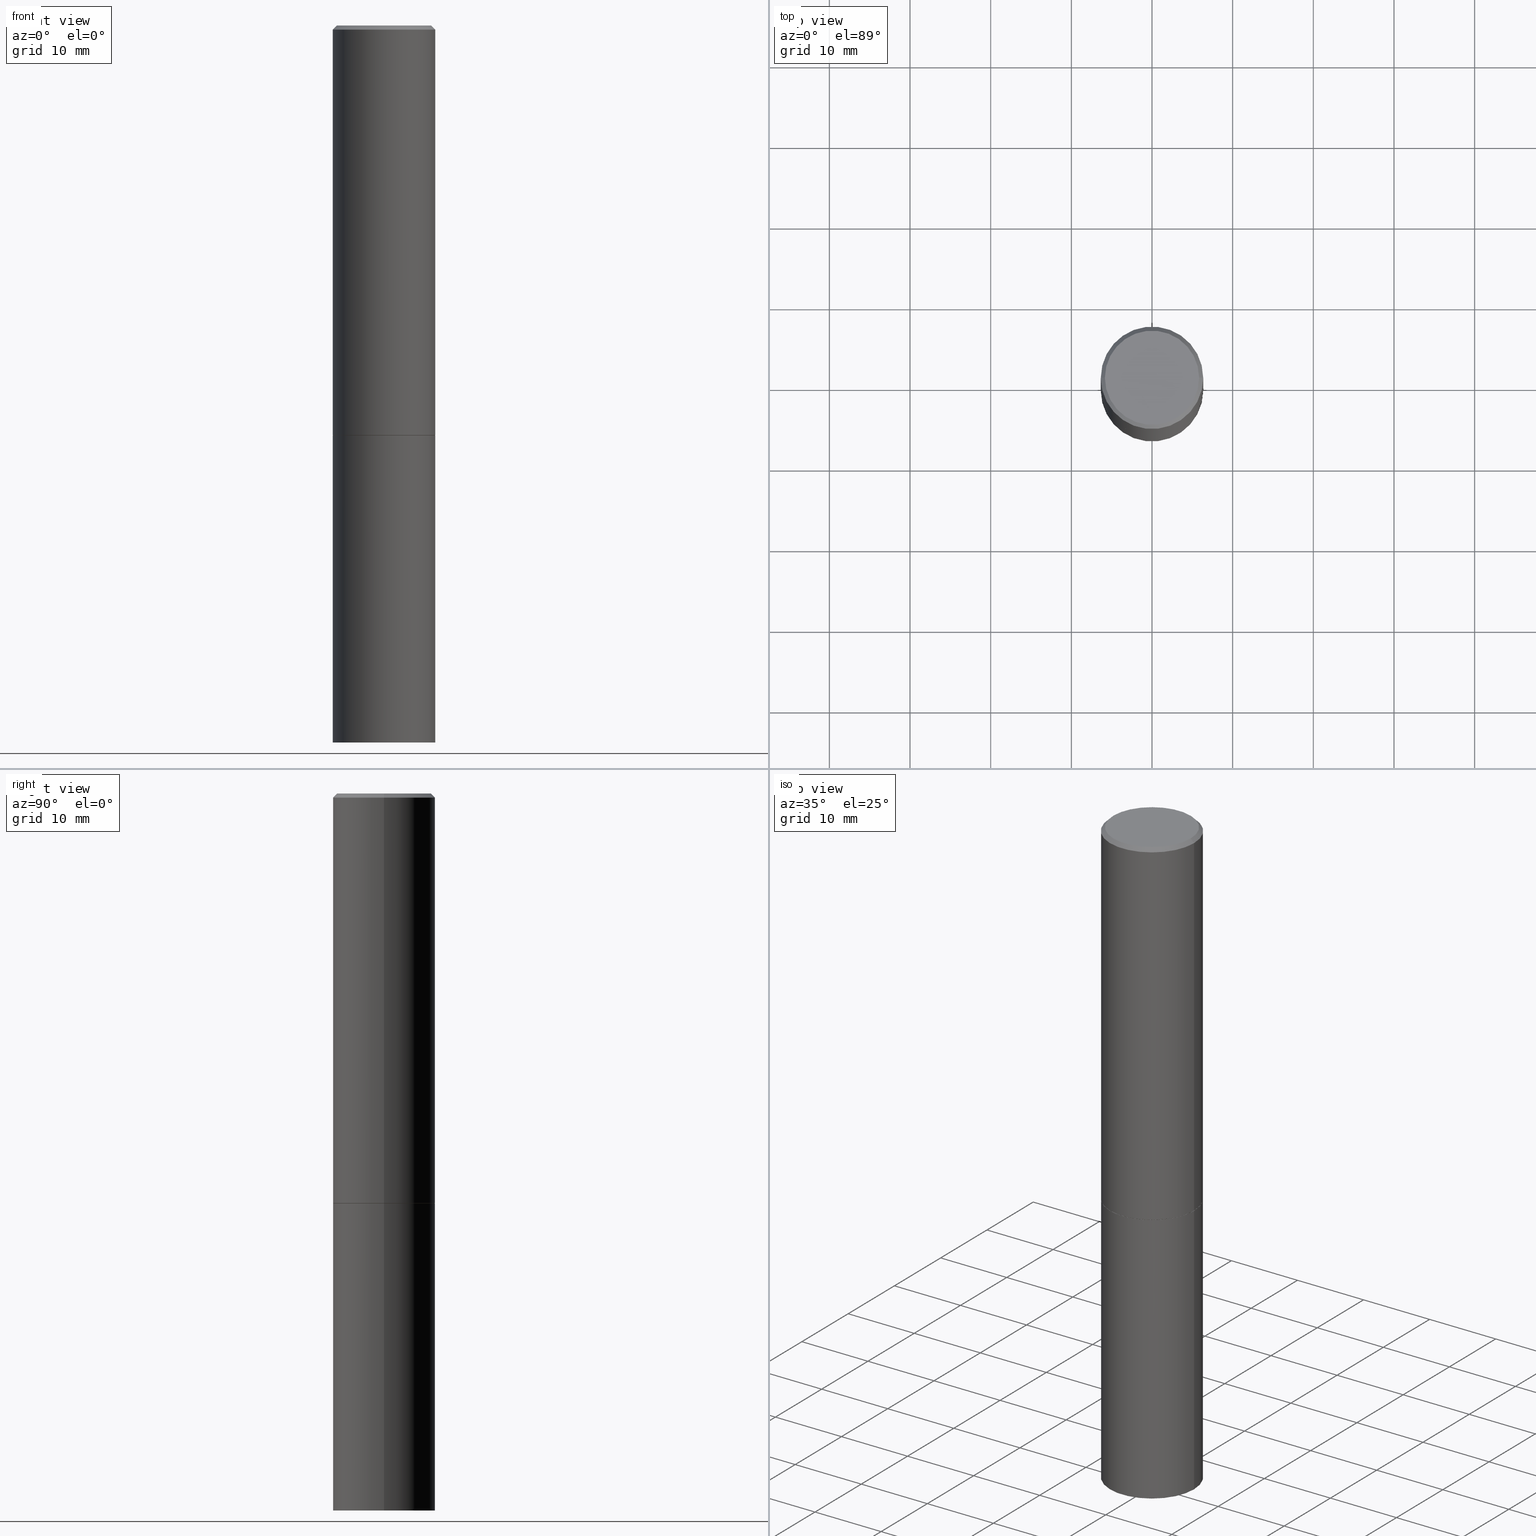
[diagram: canonical four-view strip — front | top / right | iso, engineering-drawing reading convention]
A machine part, canonical four-view strip (front | top / right | iso — engineering-drawing reading convention). The complete STEP part file that produces these views, byte-faithful:
ISO-10303-21;
HEADER;
FILE_DESCRIPTION (( 'STEP AP203' ),
    '1' );
FILE_NAME ('72977.STEP',
    '2024-02-29T06:14:32',
    ( '' ),
    ( '' ),
    'SwSTEP 2.0',
    'SolidWorks 2023',
    '' );
FILE_SCHEMA (( 'CONFIG_CONTROL_DESIGN' ));
ENDSEC;

DATA;
#1 = CONICAL_SURFACE ( 'NONE', #29, 0.2489999999999999991, 0.7853981633975507526 ) ;
#2 = VERTEX_POINT ( 'NONE', #228 ) ;
#3 = LINE ( 'NONE', #238, #68 ) ;
#4 = DIRECTION ( 'NONE',  ( -2.445468806185136597E-29, 3.491481338843145583E-15, 1.000000000000000000 ) ) ;
#5 = AXIS2_PLACEMENT_3D ( 'NONE', #92, #4, #265 ) ;
#6 = COORDINATED_UNIVERSAL_TIME_OFFSET ( 5, 0, .BEHIND. ) ;
#7 = LINE ( 'NONE', #316, #183 ) ;
#8 = CARTESIAN_POINT ( 'NONE',  ( 4.890937612370280165E-31, -6.982962677686301470E-17, -0.02000000000000003164 ) ) ;
#9 = EDGE_LOOP ( 'NONE', ( #176, #251 ) ) ;
#10 = DIRECTION ( 'NONE',  ( -2.438088387897960049E-29, 3.491481338843145188E-15, 1.000000000000000000 ) ) ;
#11 = EDGE_CURVE ( 'NONE', #2, #283, #248, .T. ) ;
#12 = ORIENTED_EDGE ( 'NONE', *, *, #133, .T. ) ;
#13 = APPLICATION_CONTEXT ( 'configuration controlled 3d designs of mechanical parts and assemblies' ) ;
#14 = DIRECTION ( 'NONE',  ( 1.000000000000000000, -6.982962677686266711E-15, 0.000000000000000000 ) ) ;
#15 = APPROVAL_PERSON_ORGANIZATION ( #201, #309, #288 ) ;
#16 = FACE_OUTER_BOUND ( 'NONE', #252, .T. ) ;
#17 = ORIENTED_EDGE ( 'NONE', *, *, #71, .F. ) ;
#18 = VERTEX_POINT ( 'NONE', #186 ) ;
#19 = CARTESIAN_POINT ( 'NONE',  ( 4.890937612370272073E-29, -6.982962677686288799E-15, -1.999999999999999334 ) ) ;
#20 = PRODUCT_DEFINITION_SHAPE ( 'NONE', 'NONE',  #76 ) ;
#21 = ORIENTED_EDGE ( 'NONE', *, *, #202, .F. ) ;
#22 = AXIS2_PLACEMENT_3D ( 'NONE', #8, #313, #93 ) ;
#23 = ADVANCED_FACE ( 'NONE', ( #131 ), #36, .F. ) ;
#24 = DIRECTION ( 'NONE',  ( 1.000000000000000000, -6.982962677686266711E-15, 0.000000000000000000 ) ) ;
#25 = DIRECTION ( 'NONE',  ( -1.000000000000000000, 6.982962677686265922E-15, -4.876176775795935793E-29 ) ) ;
#26 = ORIENTED_EDGE ( 'NONE', *, *, #179, .F. ) ;
#27 = CARTESIAN_POINT ( 'NONE',  ( 4.888492143564087030E-29, -6.979471196347446580E-15, -1.998999999999999666 ) ) ;
#28 = EDGE_LOOP ( 'NONE', ( #300, #117, #273, #296 ) ) ;
#29 = AXIS2_PLACEMENT_3D ( 'NONE', #246, #275, #323 ) ;
#30 = DATE_TIME_ROLE ( 'creation_date' ) ;
#31 = CARTESIAN_POINT ( 'NONE',  ( 0.000000000000000000, 0.000000000000000000, 0.000000000000000000 ) ) ;
#32 = PERSON_AND_ORGANIZATION ( #360, #118 ) ;
#33 = LINE ( 'NONE', #293, #263 ) ;
#34 = CALENDAR_DATE ( 2024, 29, 2 ) ;
#35 = AXIS2_PLACEMENT_3D ( 'NONE', #163, #279, #25 ) ;
#36 = PLANE ( 'NONE',  #112 ) ;
#37 = SECURITY_CLASSIFICATION_LEVEL ( 'unclassified' ) ;
#38 = CARTESIAN_POINT ( 'NONE',  ( 4.890937612370272073E-29, -6.982962677686288799E-15, -1.999999999999999334 ) ) ;
#39 = DIRECTION ( 'NONE',  ( 1.000000000000000000, -6.982962677686266711E-15, 4.876176775795935793E-29 ) ) ;
#40 = CARTESIAN_POINT ( 'NONE',  ( 1.745740669421615390E-15, 0.2499999999999930334, -2.000000000000000444 ) ) ;
#41 = LINE ( 'NONE', #327, #303 ) ;
#42 = VERTEX_POINT ( 'NONE', #235 ) ;
#43 = EDGE_CURVE ( 'NONE', #280, #298, #129, .T. ) ;
#44 = DIRECTION ( 'NONE',  ( -2.445468806185136597E-29, 3.491481338843145583E-15, 1.000000000000000000 ) ) ;
#45 = APPROVAL_DATE_TIME ( #233, #110 ) ;
#46 = CC_DESIGN_PERSON_AND_ORGANIZATION_ASSIGNMENT ( #227, #173, ( #69 ) ) ;
#47 = CIRCLE ( 'NONE', #79, 0.2500000000000000000 ) ;
#48 = ADVANCED_FACE ( 'NONE', ( #347 ), #324, .T. ) ;
#49 = AXIS2_PLACEMENT_3D ( 'NONE', #31, #116, #115 ) ;
#50 = DIRECTION ( 'NONE',  ( 1.000000000000000000, -6.982962677686265922E-15, 4.876176775795935793E-29 ) ) ;
#51 = LOCAL_TIME ( 1, 14, 32.00000000000000000, #286 ) ;
#52 = APPLICATION_PROTOCOL_DEFINITION ( 'international standard', 'config_control_design', 1994, #364 ) ;
#53 = PLANE ( 'NONE',  #35 ) ;
#54 = DATE_AND_TIME ( #34, #157 ) ;
#55 = PERSON_AND_ORGANIZATION_ROLE ( 'classification_officer' ) ;
#56 = CC_DESIGN_PERSON_AND_ORGANIZATION_ASSIGNMENT ( #197, #212, ( #355 ) ) ;
#57 = DIRECTION ( 'NONE',  ( -2.445468806185136597E-29, 3.491481338843145583E-15, 1.000000000000000000 ) ) ;
#58 =( GEOMETRIC_REPRESENTATION_CONTEXT ( 3 ) GLOBAL_UNCERTAINTY_ASSIGNED_CONTEXT ( ( #262 ) ) GLOBAL_UNIT_ASSIGNED_CONTEXT ( ( #126, #331, #65 ) ) REPRESENTATION_CONTEXT ( 'NONE', 'WORKASPACE' ) );
#59 = DIRECTION ( 'NONE',  ( 1.000000000000000000, -6.982962677686266711E-15, 0.000000000000000000 ) ) ;
#60 = APPLICATION_PROTOCOL_DEFINITION ( 'international standard', 'config_control_design', 1994, #13 ) ;
#61 = VERTEX_POINT ( 'NONE', #199 ) ;
#62 = ORIENTED_EDGE ( 'NONE', *, *, #220, .T. ) ;
#63 = DIRECTION ( 'NONE',  ( 1.000000000000000000, -6.982962677686266711E-15, 0.000000000000000000 ) ) ;
#64 = FACE_OUTER_BOUND ( 'NONE', #315, .T. ) ;
#65 =( NAMED_UNIT ( * ) SI_UNIT ( $, .STERADIAN. ) SOLID_ANGLE_UNIT ( ) );
#66 = PERSON_AND_ORGANIZATION_ROLE ( 'creator' ) ;
#67 = ORIENTED_EDGE ( 'NONE', *, *, #108, .F. ) ;
#68 = VECTOR ( 'NONE', #232, 39.37007874015748143 ) ;
#69 = PRODUCT_DEFINITION_FORMATION_WITH_SPECIFIED_SOURCE ( 'ANY', '', #355, .NOT_KNOWN. ) ;
#70 = ADVANCED_FACE ( 'NONE', ( #258 ), #287, .T. ) ;
#71 = EDGE_CURVE ( 'NONE', #137, #283, #3, .T. ) ;
#72 = DIRECTION ( 'NONE',  ( -2.445468806185136597E-29, 3.491481338843145583E-15, 1.000000000000000000 ) ) ;
#73 = DIRECTION ( 'NONE',  ( -2.445468806185136877E-29, 3.491481338843145188E-15, 1.000000000000000000 ) ) ;
#74 = AXIS2_PLACEMENT_3D ( 'NONE', #80, #306, #362 ) ;
#75 = ADVANCED_FACE ( 'NONE', ( #142 ), #267, .T. ) ;
#76 = PRODUCT_DEFINITION ( 'UNKNOWN', '', #69, #167 ) ;
#77 = CARTESIAN_POINT ( 'NONE',  ( 1.606081415867839490E-15, 0.2299999999999997602, -8.009064516888724897E-16 ) ) ;
#78 = ADVANCED_FACE ( 'NONE', ( #64 ), #192, .T. ) ;
#79 = AXIS2_PLACEMENT_3D ( 'NONE', #366, #156, #281 ) ;
#80 = CARTESIAN_POINT ( 'NONE',  ( 0.000000000000000000, 0.000000000000000000, 0.000000000000000000 ) ) ;
#81 = CARTESIAN_POINT ( 'NONE',  ( 4.890937612370280165E-31, -6.982962677686301470E-17, -0.02000000000000003164 ) ) ;
#82 = CARTESIAN_POINT ( 'NONE',  ( 4.890937612370272073E-29, -6.982962677686288799E-15, -1.999999999999999334 ) ) ;
#83 = DIRECTION ( 'NONE',  ( -2.445468806185136597E-29, 3.491481338843145583E-15, 1.000000000000000000 ) ) ;
#84 = CARTESIAN_POINT ( 'NONE',  ( 0.000000000000000000, 0.000000000000000000, 0.000000000000000000 ) ) ;
#85 = PRODUCT_RELATED_PRODUCT_CATEGORY ( 'detail', '', ( #355 ) ) ;
#86 = ORIENTED_EDGE ( 'NONE', *, *, #237, .T. ) ;
#87 = AXIS2_PLACEMENT_3D ( 'NONE', #340, #57, #247 ) ;
#88 = LOCAL_TIME ( 1, 14, 32.00000000000000000, #6 ) ;
#89 = ORIENTED_EDGE ( 'NONE', *, *, #271, .F. ) ;
#90 = DIRECTION ( 'NONE',  ( -2.445468806185136597E-29, 3.491481338843145583E-15, 1.000000000000000000 ) ) ;
#91 = DATE_AND_TIME ( #236, #213 ) ;
#92 = CARTESIAN_POINT ( 'NONE',  ( 8.559140821647976968E-29, -1.222018468595100934E-14, -3.500000000000000000 ) ) ;
#93 = DIRECTION ( 'NONE',  ( -1.000000000000000000, 6.982962677686266711E-15, 0.000000000000000000 ) ) ;
#94 = CIRCLE ( 'NONE', #239, 0.2500000000000000000 ) ;
#95 = LINE ( 'NONE', #357, #318 ) ;
#96 = DIRECTION ( 'NONE',  ( 1.000000000000000000, -6.982962677686266711E-15, 0.000000000000000000 ) ) ;
#97 = FACE_OUTER_BOUND ( 'NONE', #166, .T. ) ;
#98 = ORIENTED_EDGE ( 'NONE', *, *, #189, .F. ) ;
#99 = CARTESIAN_POINT ( 'NONE',  ( -1.043851414335219820E-46, 1.490343170380447200E-32, 4.268512490100411279E-18 ) ) ;
#100 = CC_DESIGN_SECURITY_CLASSIFICATION ( #325, ( #69 ) ) ;
#101 = DIRECTION ( 'NONE',  ( -2.445468806185136597E-29, 3.491481338843145583E-15, 1.000000000000000000 ) ) ;
#102 = EDGE_CURVE ( 'NONE', #144, #280, #41, .T. ) ;
#103 = ORIENTED_EDGE ( 'NONE', *, *, #189, .T. ) ;
#104 = EDGE_LOOP ( 'NONE', ( #226, #161, #230, #253 ) ) ;
#105 = LINE ( 'NONE', #223, #219 ) ;
#106 = CIRCLE ( 'NONE', #268, 0.2499999999999998057 ) ;
#107 = ORIENTED_EDGE ( 'NONE', *, *, #164, .F. ) ;
#108 = EDGE_CURVE ( 'NONE', #18, #294, #123, .T. ) ;
#109 = CARTESIAN_POINT ( 'NONE',  ( -0.2499999999999998057, 1.675911042644702196E-15, -0.02000000000000003164 ) ) ;
#110 = APPROVAL ( #196, 'UNSPECIFIED' ) ;
#111 = CALENDAR_DATE ( 2024, 29, 2 ) ;
#112 = AXIS2_PLACEMENT_3D ( 'NONE', #38, #10, #50 ) ;
#113 = CIRCLE ( 'NONE', #5, 0.2500000000000000000 ) ;
#114 = PERSON_AND_ORGANIZATION_ROLE ( 'creator' ) ;
#115 = DIRECTION ( 'NONE',  ( 1.000000000000000000, -6.982962677686266711E-15, 4.876176775795935793E-29 ) ) ;
#116 = DIRECTION ( 'NONE',  ( -2.445468806185136597E-29, 3.491481338843145583E-15, 1.000000000000000000 ) ) ;
#117 = ORIENTED_EDGE ( 'NONE', *, *, #351, .T. ) ;
#118 = ORGANIZATION ( 'UNSPECIFIED', 'UNSPECIFIED', '' ) ;
#119 = EDGE_LOOP ( 'NONE', ( #177, #215, #98, #209 ) ) ;
#120 = CYLINDRICAL_SURFACE ( 'NONE', #74, 0.2499999999999998890 ) ;
#121 = EDGE_LOOP ( 'NONE', ( #21, #356 ) ) ;
#122 = ADVANCED_FACE ( 'NONE', ( #97 ), #352, .F. ) ;
#123 = CIRCLE ( 'NONE', #334, 0.2299999999999997602 ) ;
#124 = DIRECTION ( 'NONE',  ( 1.000000000000000000, -6.982962677686267499E-15, 4.876225828469313926E-29 ) ) ;
#125 = CIRCLE ( 'NONE', #297, 0.2500000000000000000 ) ;
#126 =( CONVERSION_BASED_UNIT ( 'INCH', #159 ) LENGTH_UNIT ( ) NAMED_UNIT ( #222 ) );
#127 = FACE_OUTER_BOUND ( 'NONE', #147, .T. ) ;
#128 = DIRECTION ( 'NONE',  ( -0.7071067811865473507, 2.468850131082255088E-15, -0.7071067811865476838 ) ) ;
#129 = CIRCLE ( 'NONE', #187, 0.2500000000000000000 ) ;
#130 = FACE_OUTER_BOUND ( 'NONE', #121, .T. ) ;
#131 = FACE_OUTER_BOUND ( 'NONE', #9, .T. ) ;
#132 = CARTESIAN_POINT ( 'NONE',  ( -0.2500000000000000000, -7.825216842418397817E-15, -1.999999999999999778 ) ) ;
#133 = EDGE_CURVE ( 'NONE', #328, #42, #174, .T. ) ;
#134 = EDGE_LOOP ( 'NONE', ( #103, #249 ) ) ;
#135 = CLOSED_SHELL ( 'NONE', ( #302, #272, #195, #70 ) ) ;
#136 = AXIS2_PLACEMENT_3D ( 'NONE', #84, #90, #284 ) ;
#137 = VERTEX_POINT ( 'NONE', #242 ) ;
#138 = PERSON_AND_ORGANIZATION ( #360, #118 ) ;
#139 = DIRECTION ( 'NONE',  ( -2.445468806185136877E-29, 3.491481338843145188E-15, 1.000000000000000000 ) ) ;
#140 = COORDINATED_UNIVERSAL_TIME_OFFSET ( 5, 0, .BEHIND. ) ;
#141 = CARTESIAN_POINT ( 'NONE',  ( 0.2489999999999999991, -8.721720384430169462E-15, -1.999999999999999334 ) ) ;
#142 = FACE_OUTER_BOUND ( 'NONE', #305, .T. ) ;
#143 = PERSON_AND_ORGANIZATION ( #360, #118 ) ;
#144 = VERTEX_POINT ( 'NONE', #321 ) ;
#145 = CC_DESIGN_DATE_AND_TIME_ASSIGNMENT ( #255, #308, ( #325 ) ) ;
#146 = CARTESIAN_POINT ( 'NONE',  ( 4.890937612370272633E-29, -6.982962677686290376E-15, -1.999999999999999778 ) ) ;
#147 = EDGE_LOOP ( 'NONE', ( #107, #269, #245, #221 ) ) ;
#148 = APPROVAL_PERSON_ORGANIZATION ( #138, #203, #307 ) ;
#149 = DIRECTION ( 'NONE',  ( 2.438088387897960049E-29, -3.491481338843145188E-15, -1.000000000000000000 ) ) ;
#150 = ORIENTED_EDGE ( 'NONE', *, *, #342, .T. ) ;
#151 = AXIS2_PLACEMENT_3D ( 'NONE', #77, #152, #178 ) ;
#152 = DIRECTION ( 'NONE',  ( 2.438088387897960049E-29, -3.491481338843145188E-15, -1.000000000000000000 ) ) ;
#153 = AXIS2_PLACEMENT_3D ( 'NONE', #336, #299, #332 ) ;
#154 = ADVANCED_FACE ( 'NONE', ( #127 ), #1, .T. ) ;
#155 = CC_DESIGN_PERSON_AND_ORGANIZATION_ASSIGNMENT ( #266, #114, ( #76 ) ) ;
#156 = DIRECTION ( 'NONE',  ( -2.445468806185136597E-29, 3.491481338843145583E-15, 1.000000000000000000 ) ) ;
#157 = LOCAL_TIME ( 1, 14, 32.00000000000000000, #205 ) ;
#158 = CARTESIAN_POINT ( 'NONE',  ( 4.890937612370280165E-31, -6.982962677686301470E-17, -0.02000000000000003164 ) ) ;
#159 = LENGTH_MEASURE_WITH_UNIT ( LENGTH_MEASURE( 0.02539999999999999897 ), #254 );
#160 = CARTESIAN_POINT ( 'NONE',  ( 0.2500000000000000000, -1.745740669421566678E-15, 1.219044193948983948E-29 ) ) ;
#161 = ORIENTED_EDGE ( 'NONE', *, *, #71, .T. ) ;
#162 = MECHANICAL_CONTEXT ( 'NONE', #364, 'mechanical' ) ;
#163 = CARTESIAN_POINT ( 'NONE',  ( 1.745740669421652072E-15, 0.2499999999999877598, -3.500000000000000888 ) ) ;
#164 = EDGE_CURVE ( 'NONE', #42, #137, #95, .T. ) ;
#165 = APPROVAL_STATUS ( 'not_yet_approved' ) ;
#166 = EDGE_LOOP ( 'NONE', ( #322, #182 ) ) ;
#167 = DESIGN_CONTEXT ( 'detailed design', #13, 'design' ) ;
#168 = PERSON_AND_ORGANIZATION ( #360, #118 ) ;
#169 = CLOSED_SHELL ( 'NONE', ( #78, #172, #48, #75, #200, #154, #23, #122 ) ) ;
#170 = DIRECTION ( 'NONE',  ( 0.000000000000000000, 0.000000000000000000, 1.000000000000000000 ) ) ;
#171 = DIRECTION ( 'NONE',  ( -2.445468806185136597E-29, 3.491481338843145583E-15, 1.000000000000000000 ) ) ;
#172 = ADVANCED_FACE ( 'NONE', ( #326 ), #207, .T. ) ;
#173 = PERSON_AND_ORGANIZATION_ROLE ( 'design_supplier' ) ;
#174 = CIRCLE ( 'NONE', #274, 0.2489999999999999991 ) ;
#175 = CIRCLE ( 'NONE', #153, 0.2500000000000000000 ) ;
#176 = ORIENTED_EDGE ( 'NONE', *, *, #133, .F. ) ;
#177 = ORIENTED_EDGE ( 'NONE', *, *, #202, .T. ) ;
#178 = DIRECTION ( 'NONE',  ( -1.000000000000000000, 6.982962677686265922E-15, -4.876176775795935793E-29 ) ) ;
#179 = EDGE_CURVE ( 'NONE', #294, #18, #193, .T. ) ;
#180 = FACE_OUTER_BOUND ( 'NONE', #134, .T. ) ;
#181 = CC_DESIGN_DATE_AND_TIME_ASSIGNMENT ( #91, #30, ( #76 ) ) ;
#182 = ORIENTED_EDGE ( 'NONE', *, *, #179, .T. ) ;
#183 = VECTOR ( 'NONE', #204, 39.37007874015748143 ) ;
#184 = CARTESIAN_POINT ( 'NONE',  ( 0.2500000000000000000, -8.725211865769012469E-15, -1.998999999999999666 ) ) ;
#185 = VERTEX_POINT ( 'NONE', #184 ) ;
#186 = CARTESIAN_POINT ( 'NONE',  ( -0.2299999999999997602, 1.640996229256270941E-15, 4.268512490089056766E-18 ) ) ;
#187 = AXIS2_PLACEMENT_3D ( 'NONE', #289, #83, #59 ) ;
#188 = EDGE_LOOP ( 'NONE', ( #26, #208, #243, #311 ) ) ;
#189 = EDGE_CURVE ( 'NONE', #298, #280, #94, .T. ) ;
#190 = DIRECTION ( 'NONE',  ( -2.445468806185136597E-29, 3.491481338843145583E-15, 1.000000000000000000 ) ) ;
#191 = DIRECTION ( 'NONE',  ( -2.445468806185136597E-29, 3.491481338843145583E-15, 1.000000000000000000 ) ) ;
#192 = CONICAL_SURFACE ( 'NONE', #292, 0.2489999999999999991, 0.7853981633975507526 ) ;
#193 = CIRCLE ( 'NONE', #206, 0.2299999999999997602 ) ;
#194 = DIRECTION ( 'NONE',  ( 1.000000000000000000, -6.982962677686266711E-15, 0.000000000000000000 ) ) ;
#195 = ADVANCED_FACE ( 'NONE', ( #180 ), #216, .F. ) ;
#196 = APPROVAL_STATUS ( 'not_yet_approved' ) ;
#197 = PERSON_AND_ORGANIZATION ( #360, #118 ) ;
#198 = COORDINATED_UNIVERSAL_TIME_OFFSET ( 5, 0, .BEHIND. ) ;
#199 = CARTESIAN_POINT ( 'NONE',  ( 0.2500000000000000000, -1.396592535537257602E-14, -3.500000000000000000 ) ) ;
#200 = ADVANCED_FACE ( 'NONE', ( #16 ), #120, .T. ) ;
#201 = PERSON_AND_ORGANIZATION ( #360, #118 ) ;
#202 = EDGE_CURVE ( 'NONE', #61, #144, #175, .T. ) ;
#203 = APPROVAL ( #290, 'UNSPECIFIED' ) ;
#204 = DIRECTION ( 'NONE',  ( 0.7071067811865473507, -7.319954787623256045E-15, -0.7071067811865476838 ) ) ;
#205 = COORDINATED_UNIVERSAL_TIME_OFFSET ( 5, 0, .BEHIND. ) ;
#206 = AXIS2_PLACEMENT_3D ( 'NONE', #99, #101, #124 ) ;
#207 = CYLINDRICAL_SURFACE ( 'NONE', #234, 0.2499999999999998890 ) ;
#208 = ORIENTED_EDGE ( 'NONE', *, *, #353, .T. ) ;
#209 = ORIENTED_EDGE ( 'NONE', *, *, #257, .F. ) ;
#210 = DIRECTION ( 'NONE',  ( 1.000000000000000000, -6.982962677686267499E-15, 4.876225828469313926E-29 ) ) ;
#211 = SHAPE_DEFINITION_REPRESENTATION ( #20, #250 ) ;
#212 = PERSON_AND_ORGANIZATION_ROLE ( 'design_owner' ) ;
#213 = LOCAL_TIME ( 1, 14, 32.00000000000000000, #140 ) ;
#214 = DIRECTION ( 'NONE',  ( -0.7071067811866199593, 7.493145998870616062E-15, 0.7071067811864750752 ) ) ;
#215 = ORIENTED_EDGE ( 'NONE', *, *, #102, .T. ) ;
#216 = PLANE ( 'NONE',  #225 ) ;
#217 = CC_DESIGN_PERSON_AND_ORGANIZATION_ASSIGNMENT ( #143, #55, ( #325 ) ) ;
#218 = ORIENTED_EDGE ( 'NONE', *, *, #240, .F. ) ;
#219 = VECTOR ( 'NONE', #128, 39.37007874015748143 ) ;
#220 = EDGE_CURVE ( 'NONE', #283, #2, #106, .T. ) ;
#221 = ORIENTED_EDGE ( 'NONE', *, *, #237, .F. ) ;
#222 = DIMENSIONAL_EXPONENTS ( 1.000000000000000000, 0.000000000000000000, 0.000000000000000000, 0.000000000000000000, 0.000000000000000000, 0.000000000000000000, 0.000000000000000000 ) ;
#223 = CARTESIAN_POINT ( 'NONE',  ( -0.2499999999999998057, 1.675911042644702196E-15, -0.02000000000000003164 ) ) ;
#224 = AXIS2_PLACEMENT_3D ( 'NONE', #158, #261, #317 ) ;
#225 = AXIS2_PLACEMENT_3D ( 'NONE', #40, #149, #270 ) ;
#226 = ORIENTED_EDGE ( 'NONE', *, *, #271, .T. ) ;
#227 = PERSON_AND_ORGANIZATION ( #360, #118 ) ;
#228 = CARTESIAN_POINT ( 'NONE',  ( 0.2499999999999998057, -1.784954126219744611E-15, -0.02000000000000003164 ) ) ;
#229 = APPROVAL_ROLE ( '' ) ;
#230 = ORIENTED_EDGE ( 'NONE', *, *, #11, .F. ) ;
#231 = FACE_OUTER_BOUND ( 'NONE', #119, .T. ) ;
#232 = DIRECTION ( 'NONE',  ( -2.445468806185136877E-29, 3.491481338843145188E-15, 1.000000000000000000 ) ) ;
#233 = DATE_AND_TIME ( #344, #51 ) ;
#234 = AXIS2_PLACEMENT_3D ( 'NONE', #320, #72, #39 ) ;
#235 = CARTESIAN_POINT ( 'NONE',  ( -0.2489999999999999991, -5.208412811295418518E-15, -1.999999999999999334 ) ) ;
#236 = CALENDAR_DATE ( 2024, 29, 2 ) ;
#237 = EDGE_CURVE ( 'NONE', #137, #185, #47, .T. ) ;
#238 = CARTESIAN_POINT ( 'NONE',  ( -0.2499999999999998890, 1.776356839400249676E-15, -1.229733772563726025E-29 ) ) ;
#239 = AXIS2_PLACEMENT_3D ( 'NONE', #146, #44, #14 ) ;
#240 = EDGE_CURVE ( 'NONE', #328, #185, #358, .T. ) ;
#241 = ORIENTED_EDGE ( 'NONE', *, *, #220, .F. ) ;
#242 = CARTESIAN_POINT ( 'NONE',  ( -0.2500000000000000000, -1.748293572161903489E-15, -1.998999999999999666 ) ) ;
#243 = ORIENTED_EDGE ( 'NONE', *, *, #11, .T. ) ;
#244 = DIRECTION ( 'NONE',  ( 1.000000000000000000, -6.982962677686266711E-15, 0.000000000000000000 ) ) ;
#245 = ORIENTED_EDGE ( 'NONE', *, *, #240, .T. ) ;
#246 = CARTESIAN_POINT ( 'NONE',  ( 4.890937612370272073E-29, -6.982962677686288799E-15, -1.999999999999999334 ) ) ;
#247 = DIRECTION ( 'NONE',  ( 1.000000000000000000, -6.982962677686266711E-15, 0.000000000000000000 ) ) ;
#248 = CIRCLE ( 'NONE', #87, 0.2499999999999998057 ) ;
#249 = ORIENTED_EDGE ( 'NONE', *, *, #43, .T. ) ;
#250 = ADVANCED_BREP_SHAPE_REPRESENTATION ( '72977', ( #341, #343, #361 ), #58 ) ;
#251 = ORIENTED_EDGE ( 'NONE', *, *, #333, .F. ) ;
#252 = EDGE_LOOP ( 'NONE', ( #17, #86, #150, #241 ) ) ;
#253 = ORIENTED_EDGE ( 'NONE', *, *, #342, .F. ) ;
#254 =( LENGTH_UNIT ( ) NAMED_UNIT ( * ) SI_UNIT ( $, .METRE. ) );
#255 = DATE_AND_TIME ( #111, #335 ) ;
#256 = DATE_AND_TIME ( #282, #88 ) ;
#257 = EDGE_CURVE ( 'NONE', #61, #298, #277, .T. ) ;
#258 = FACE_OUTER_BOUND ( 'NONE', #28, .T. ) ;
#259 = EDGE_CURVE ( 'NONE', #18, #283, #105, .T. ) ;
#260 = CARTESIAN_POINT ( 'NONE',  ( 0.2500000000000000000, -8.728703347107857054E-15, -1.999999999999999778 ) ) ;
#261 = DIRECTION ( 'NONE',  ( 2.445468806185136597E-29, -3.491481338843145583E-15, -1.000000000000000000 ) ) ;
#262 = UNCERTAINTY_MEASURE_WITH_UNIT (LENGTH_MEASURE( 1.000000000000000082E-05 ), #126, 'distance_accuracy_value', 'NONE');
#263 = VECTOR ( 'NONE', #139, 39.37007874015748143 ) ;
#264 = CC_DESIGN_APPROVAL ( #110, ( #325 ) ) ;
#265 = DIRECTION ( 'NONE',  ( 1.000000000000000000, -6.982962677686270655E-15, 0.000000000000000000 ) ) ;
#266 = PERSON_AND_ORGANIZATION ( #360, #118 ) ;
#267 = CONICAL_SURFACE ( 'NONE', #22, 0.2499999999999998057, 0.7853981633974480570 ) ;
#268 = AXIS2_PLACEMENT_3D ( 'NONE', #81, #191, #194 ) ;
#269 = ORIENTED_EDGE ( 'NONE', *, *, #333, .T. ) ;
#270 = DIRECTION ( 'NONE',  ( -1.000000000000000000, 6.982962677686265922E-15, -4.876176775795935793E-29 ) ) ;
#271 = EDGE_CURVE ( 'NONE', #185, #137, #125, .T. ) ;
#272 = ADVANCED_FACE ( 'NONE', ( #130 ), #53, .T. ) ;
#273 = ORIENTED_EDGE ( 'NONE', *, *, #257, .T. ) ;
#274 = AXIS2_PLACEMENT_3D ( 'NONE', #19, #349, #96 ) ;
#275 = DIRECTION ( 'NONE',  ( -2.445468806185136597E-29, 3.491481338843145583E-15, 1.000000000000000000 ) ) ;
#276 = DIRECTION ( 'NONE',  ( 0.7071067811866199593, -2.468850131083015945E-15, 0.7071067811864750752 ) ) ;
#277 = LINE ( 'NONE', #160, #319 ) ;
#278 = VECTOR ( 'NONE', #276, 39.37007874015748143 ) ;
#279 = DIRECTION ( 'NONE',  ( 2.438088387897960049E-29, -3.491481338843145188E-15, -1.000000000000000000 ) ) ;
#280 = VERTEX_POINT ( 'NONE', #132 ) ;
#281 = DIRECTION ( 'NONE',  ( 1.000000000000000000, -6.982962677686266711E-15, 0.000000000000000000 ) ) ;
#282 = CALENDAR_DATE ( 2024, 29, 2 ) ;
#283 = VERTEX_POINT ( 'NONE', #109 ) ;
#284 = DIRECTION ( 'NONE',  ( 1.000000000000000000, -6.982962677686266711E-15, 4.876176775795935793E-29 ) ) ;
#285 = AXIS2_PLACEMENT_3D ( 'NONE', #312, #171, #63 ) ;
#286 = COORDINATED_UNIVERSAL_TIME_OFFSET ( 5, 0, .BEHIND. ) ;
#287 = CYLINDRICAL_SURFACE ( 'NONE', #49, 0.2500000000000000000 ) ;
#288 = APPROVAL_ROLE ( '' ) ;
#289 = CARTESIAN_POINT ( 'NONE',  ( 4.890937612370272633E-29, -6.982962677686290376E-15, -1.999999999999999778 ) ) ;
#290 = APPROVAL_STATUS ( 'not_yet_approved' ) ;
#291 = DIRECTION ( 'NONE',  ( 1.000000000000000000, 0.000000000000000000, 0.000000000000000000 ) ) ;
#292 = AXIS2_PLACEMENT_3D ( 'NONE', #82, #190, #244 ) ;
#293 = CARTESIAN_POINT ( 'NONE',  ( 0.2499999999999998890, -1.745740669421565889E-15, 1.219044193948983388E-29 ) ) ;
#294 = VERTEX_POINT ( 'NONE', #338 ) ;
#295 = CARTESIAN_POINT ( 'NONE',  ( -1.043851414335219820E-46, 1.490343170380447200E-32, 4.268512490100411279E-18 ) ) ;
#296 = ORIENTED_EDGE ( 'NONE', *, *, #43, .F. ) ;
#297 = AXIS2_PLACEMENT_3D ( 'NONE', #27, #329, #24 ) ;
#298 = VERTEX_POINT ( 'NONE', #260 ) ;
#299 = DIRECTION ( 'NONE',  ( -2.445468806185136597E-29, 3.491481338843145583E-15, 1.000000000000000000 ) ) ;
#300 = ORIENTED_EDGE ( 'NONE', *, *, #102, .F. ) ;
#301 = CARTESIAN_POINT ( 'NONE',  ( 0.2489999999999999991, -8.721720384430169462E-15, -1.999999999999999334 ) ) ;
#302 = ADVANCED_FACE ( 'NONE', ( #231 ), #348, .T. ) ;
#303 = VECTOR ( 'NONE', #73, 39.37007874015748143 ) ;
#304 = CC_DESIGN_APPROVAL ( #203, ( #76 ) ) ;
#305 = EDGE_LOOP ( 'NONE', ( #337, #67, #365, #62 ) ) ;
#306 = DIRECTION ( 'NONE',  ( -2.445468806185136597E-29, 3.491481338843145583E-15, 1.000000000000000000 ) ) ;
#307 = APPROVAL_ROLE ( '' ) ;
#308 = DATE_TIME_ROLE ( 'classification_date' ) ;
#309 = APPROVAL ( #165, 'UNSPECIFIED' ) ;
#310 = CARTESIAN_POINT ( 'NONE',  ( 0.000000000000000000, 0.000000000000000000, 0.000000000000000000 ) ) ;
#311 = ORIENTED_EDGE ( 'NONE', *, *, #259, .F. ) ;
#312 = CARTESIAN_POINT ( 'NONE',  ( 4.890937612370272073E-29, -6.982962677686288799E-15, -1.999999999999999334 ) ) ;
#313 = DIRECTION ( 'NONE',  ( 2.445468806185136597E-29, -3.491481338843145583E-15, -1.000000000000000000 ) ) ;
#314 = APPROVAL_DATE_TIME ( #256, #309 ) ;
#315 = EDGE_LOOP ( 'NONE', ( #12, #345, #89, #218 ) ) ;
#316 = CARTESIAN_POINT ( 'NONE',  ( 0.2499999999999998057, -1.784954126219744611E-15, -0.02000000000000003164 ) ) ;
#317 = DIRECTION ( 'NONE',  ( -1.000000000000000000, 6.982962677686266711E-15, 0.000000000000000000 ) ) ;
#318 = VECTOR ( 'NONE', #214, 39.37007874015748143 ) ;
#319 = VECTOR ( 'NONE', #363, 39.37007874015748143 ) ;
#320 = CARTESIAN_POINT ( 'NONE',  ( 0.000000000000000000, 0.000000000000000000, 0.000000000000000000 ) ) ;
#321 = CARTESIAN_POINT ( 'NONE',  ( -0.2500000000000000000, -7.825216842418397817E-15, -3.500000000000000000 ) ) ;
#322 = ORIENTED_EDGE ( 'NONE', *, *, #108, .T. ) ;
#323 = DIRECTION ( 'NONE',  ( 1.000000000000000000, -6.982962677686266711E-15, 0.000000000000000000 ) ) ;
#324 = CONICAL_SURFACE ( 'NONE', #224, 0.2499999999999998057, 0.7853981633974480570 ) ;
#325 = SECURITY_CLASSIFICATION ( '', '', #37 ) ;
#326 = FACE_OUTER_BOUND ( 'NONE', #104, .T. ) ;
#327 = CARTESIAN_POINT ( 'NONE',  ( -0.2500000000000000000, 1.776356839400250465E-15, -1.229733772563726445E-29 ) ) ;
#328 = VERTEX_POINT ( 'NONE', #141 ) ;
#329 = DIRECTION ( 'NONE',  ( -2.445468806185136597E-29, 3.491481338843145583E-15, 1.000000000000000000 ) ) ;
#330 = CC_DESIGN_APPROVAL ( #309, ( #69 ) ) ;
#331 =( NAMED_UNIT ( * ) PLANE_ANGLE_UNIT ( ) SI_UNIT ( $, .RADIAN. ) );
#332 = DIRECTION ( 'NONE',  ( 1.000000000000000000, -6.982962677686270655E-15, 0.000000000000000000 ) ) ;
#333 = EDGE_CURVE ( 'NONE', #42, #328, #350, .T. ) ;
#334 = AXIS2_PLACEMENT_3D ( 'NONE', #295, #354, #210 ) ;
#335 = LOCAL_TIME ( 1, 14, 32.00000000000000000, #198 ) ;
#336 = CARTESIAN_POINT ( 'NONE',  ( 8.559140821647976968E-29, -1.222018468595100934E-14, -3.500000000000000000 ) ) ;
#337 = ORIENTED_EDGE ( 'NONE', *, *, #353, .F. ) ;
#338 = CARTESIAN_POINT ( 'NONE',  ( 0.2299999999999997602, -1.681434332853597631E-15, 4.268512490111905999E-18 ) ) ;
#339 = APPROVAL_DATE_TIME ( #54, #203 ) ;
#340 = CARTESIAN_POINT ( 'NONE',  ( 4.890937612370280165E-31, -6.982962677686301470E-17, -0.02000000000000003164 ) ) ;
#341 = MANIFOLD_SOLID_BREP ( 'Body-Move/Copy2[1]', #135 ) ;
#342 = EDGE_CURVE ( 'NONE', #185, #2, #33, .T. ) ;
#343 = MANIFOLD_SOLID_BREP ( 'Body-Move/Copy2[2]', #169 ) ;
#344 = CALENDAR_DATE ( 2024, 29, 2 ) ;
#345 = ORIENTED_EDGE ( 'NONE', *, *, #164, .T. ) ;
#346 = APPROVAL_PERSON_ORGANIZATION ( #168, #110, #229 ) ;
#347 = FACE_OUTER_BOUND ( 'NONE', #188, .T. ) ;
#348 = CYLINDRICAL_SURFACE ( 'NONE', #136, 0.2500000000000000000 ) ;
#349 = DIRECTION ( 'NONE',  ( -2.445468806185136597E-29, 3.491481338843145583E-15, 1.000000000000000000 ) ) ;
#350 = CIRCLE ( 'NONE', #285, 0.2489999999999999991 ) ;
#351 = EDGE_CURVE ( 'NONE', #144, #61, #113, .T. ) ;
#352 = PLANE ( 'NONE',  #151 ) ;
#353 = EDGE_CURVE ( 'NONE', #294, #2, #7, .T. ) ;
#354 = DIRECTION ( 'NONE',  ( -2.445468806185136597E-29, 3.491481338843145583E-15, 1.000000000000000000 ) ) ;
#355 = PRODUCT ( '72977', '72977', '', ( #162 ) ) ;
#356 = ORIENTED_EDGE ( 'NONE', *, *, #351, .F. ) ;
#357 = CARTESIAN_POINT ( 'NONE',  ( -0.2489999999999999991, -5.213711265643639342E-15, -1.999999999999999334 ) ) ;
#358 = LINE ( 'NONE', #301, #278 ) ;
#359 = CC_DESIGN_PERSON_AND_ORGANIZATION_ASSIGNMENT ( #32, #66, ( #69 ) ) ;
#360 = PERSON ( 'UNSPECIFIED', 'UNSPECIFIED', 'UNSPECIFIED', ('UNSPECIFIED'), ('UNSPECIFIED'), ('UNSPECIFIED') ) ;
#361 = AXIS2_PLACEMENT_3D ( 'NONE', #310, #170, #291 ) ;
#362 = DIRECTION ( 'NONE',  ( 1.000000000000000000, -6.982962677686266711E-15, 4.876176775795935793E-29 ) ) ;
#363 = DIRECTION ( 'NONE',  ( -2.445468806185136877E-29, 3.491481338843145188E-15, 1.000000000000000000 ) ) ;
#364 = APPLICATION_CONTEXT ( 'configuration controlled 3d designs of mechanical parts and assemblies' ) ;
#365 = ORIENTED_EDGE ( 'NONE', *, *, #259, .T. ) ;
#366 = CARTESIAN_POINT ( 'NONE',  ( 4.888492143564087030E-29, -6.979471196347446580E-15, -1.998999999999999666 ) ) ;
ENDSEC;
END-ISO-10303-21;
